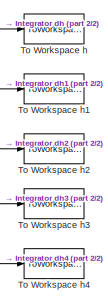
[diagram: root canvas - part 1/2, top right region]
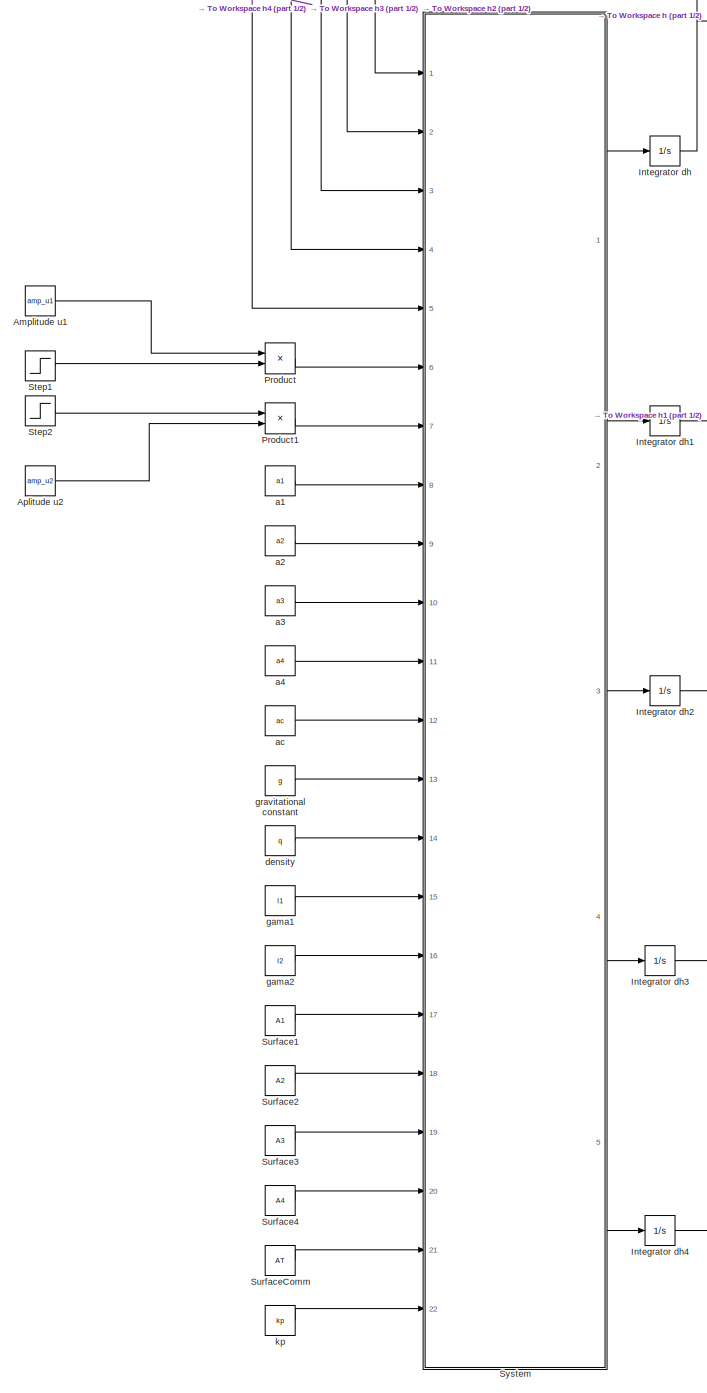
[diagram: root canvas - part 2/2, left side, full height]
MODEL slx_639c44bf7138
KIND model
CONFIG AbsTol = auto
CONFIG EnableMultiTasking = off
CONFIG FixedStep = auto
CONFIG MaxStep = auto
CONFIG MinStep = auto
CONFIG RelTol = 1e-3
CONFIG SampleTimeConstraint = Unconstrained
CONFIG Solver = VariableStepAuto
CONFIG SolverName = VariableStepAuto
CONFIG StartTime = 0.0
CONFIG StopTime = 10.0
BLOCK [Constant]  gama1
  Value = l1
  VectorParams1D = off
BLOCK [Constant] Amplitude u1
  Value = amp_u1
BLOCK [Constant] Aplitude u2
  Value = amp_u2
BLOCK [Integrator] Integrator dh
  InitialCondition = cih
  Ports = [1, 1]
BLOCK [Integrator] Integrator dh1
  InitialCondition = cih1
  Ports = [1, 1]
BLOCK [Integrator] Integrator dh2
  InitialCondition = cih2
  Ports = [1, 1]
BLOCK [Integrator] Integrator dh3
  InitialCondition = cih3
  Ports = [1, 1]
BLOCK [Integrator] Integrator dh4
  InitialCondition = cih4
  Ports = [1, 1]
BLOCK [Product] Product
  InputSameDT = off
  OutDataTypeStr = Inherit: Inherit via internal rule
  Ports = [2, 1]
  RndMeth = Floor
  SaturateOnIntegerOverflow = off
BLOCK [Product] Product1
  InputSameDT = off
  OutDataTypeStr = Inherit: Inherit via internal rule
  Ports = [2, 1]
  RndMeth = Floor
  SaturateOnIntegerOverflow = off
BLOCK [Step] Step1
  After = step1
  SampleTime = 0
BLOCK [Step] Step2
  After = step2
  SampleTime = 0
BLOCK [Constant] Surface1
  Value = A1
  VectorParams1D = off
BLOCK [Constant] Surface2
  Value = A2
  VectorParams1D = off
BLOCK [Constant] Surface3
  Value = A3
  VectorParams1D = off
BLOCK [Constant] Surface4
  Value = A4
  VectorParams1D = off
BLOCK [Constant] SurfaceComm
  Value = AT
  VectorParams1D = off
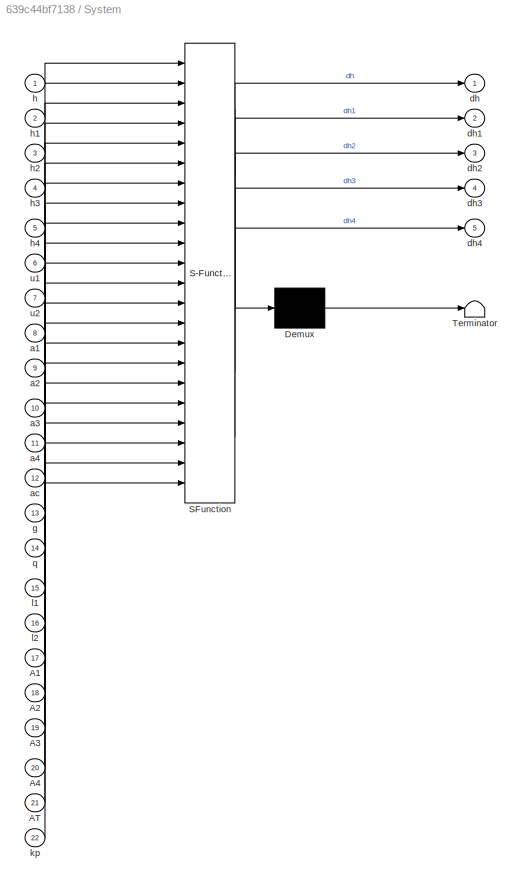
BLOCK [SubSystem] System
  ErrorFcn = Stateflow.Translate.translate
  PermitHierarchicalResolution = ExplicitOnly
  Ports = [22, 5]
  RequestExecContextInheritance = off
  SFBlockType = MATLAB Function
  TreatAsAtomicUnit = on
BLOCK [Demux] System/ Demux 
  Outputs = 1
  Ports = [1, 1]
BLOCK [S-Function] System/ SFunction 
  EnableBusSupport = off
  FunctionName = sf_sfun
  PortCounts = [22 6]
  Ports = [22, 6]
  SFcnIsStateOwnerBlock = off
  SFunctionDeploymentMode = off
  Tag = Stateflow S-Function tema 2
BLOCK [Terminator] System/ Terminator 
BLOCK [Inport] System/A1
  IconDisplay = Port number
  Port = 17
BLOCK [Inport] System/A2
  IconDisplay = Port number
  Port = 18
BLOCK [Inport] System/A3
  IconDisplay = Port number
  Port = 19
BLOCK [Inport] System/A4
  IconDisplay = Port number
  Port = 20
BLOCK [Inport] System/AT
  IconDisplay = Port number
  Port = 21
BLOCK [Inport] System/a1
  IconDisplay = Port number
  Port = 8
BLOCK [Inport] System/a2
  IconDisplay = Port number
  Port = 9
BLOCK [Inport] System/a3
  IconDisplay = Port number
  Port = 10
BLOCK [Inport] System/a4
  IconDisplay = Port number
  Port = 11
BLOCK [Inport] System/ac
  IconDisplay = Port number
  Port = 12
BLOCK [Outport] System/dh
  IconDisplay = Port number
BLOCK [Outport] System/dh1
  IconDisplay = Port number
  Port = 2
BLOCK [Outport] System/dh2
  IconDisplay = Port number
  Port = 3
BLOCK [Outport] System/dh3
  IconDisplay = Port number
  Port = 4
BLOCK [Outport] System/dh4
  IconDisplay = Port number
  Port = 5
BLOCK [Inport] System/g
  IconDisplay = Port number
  Port = 13
BLOCK [Inport] System/h
  IconDisplay = Port number
BLOCK [Inport] System/h1
  IconDisplay = Port number
  Port = 2
BLOCK [Inport] System/h2
  IconDisplay = Port number
  Port = 3
BLOCK [Inport] System/h3
  IconDisplay = Port number
  Port = 4
BLOCK [Inport] System/h4
  IconDisplay = Port number
  Port = 5
BLOCK [Inport] System/kp
  IconDisplay = Port number
  Port = 22
BLOCK [Inport] System/l1
  IconDisplay = Port number
  Port = 15
BLOCK [Inport] System/l2
  IconDisplay = Port number
  Port = 16
BLOCK [Inport] System/q
  IconDisplay = Port number
  Port = 14
BLOCK [Inport] System/u1
  IconDisplay = Port number
  Port = 6
BLOCK [Inport] System/u2
  IconDisplay = Port number
  Port = 7
BLOCK [ToWorkspace] To Workspace h
  FixptAsFi = on
  MaxDataPoints = inf
  Ports = [1]
  SampleTime = -1
  Save2DSignal = 3-D array (concatenate along third dimension)
  SaveFormat = Timeseries
  VariableName = h
BLOCK [ToWorkspace] To Workspace h1
  FixptAsFi = on
  MaxDataPoints = inf
  Ports = [1]
  SampleTime = -1
  Save2DSignal = 3-D array (concatenate along third dimension)
  SaveFormat = Timeseries
  VariableName = h1
BLOCK [ToWorkspace] To Workspace h2
  FixptAsFi = on
  MaxDataPoints = inf
  Ports = [1]
  SampleTime = -1
  Save2DSignal = 3-D array (concatenate along third dimension)
  SaveFormat = Timeseries
  VariableName = h2
BLOCK [ToWorkspace] To Workspace h3
  FixptAsFi = on
  MaxDataPoints = inf
  Ports = [1]
  SampleTime = -1
  Save2DSignal = 3-D array (concatenate along third dimension)
  SaveFormat = Timeseries
  VariableName = h3
BLOCK [ToWorkspace] To Workspace h4
  FixptAsFi = on
  MaxDataPoints = inf
  Ports = [1]
  SampleTime = -1
  Save2DSignal = 3-D array (concatenate along third dimension)
  SaveFormat = Timeseries
  VariableName = h4
BLOCK [Constant] a1
  Value = a1
  VectorParams1D = off
BLOCK [Constant] a2
  Value = a2
  VectorParams1D = off
BLOCK [Constant] a3
  Value = a3
  VectorParams1D = off
BLOCK [Constant] a4
  Value = a4
  VectorParams1D = off
BLOCK [Constant] ac
  Value = ac
  VectorParams1D = off
BLOCK [Constant] density
  Value = q
  VectorParams1D = off
BLOCK [Constant] gama2
  Value = l2
  VectorParams1D = off
BLOCK [Constant] gravitational constant
  Value = g
  VectorParams1D = off
BLOCK [Constant] kp
  Value = kp
  VectorParams1D = off
LINE  gama1:1 -> System:15
LINE Amplitude u1:1 -> Product:1
LINE Aplitude u2:1 -> Product1:2
NET Integrator dh1:1 -> System:2, To Workspace h1:1
NET Integrator dh2:1 -> System:3, To Workspace h2:1
NET Integrator dh3:1 -> System:4, To Workspace h3:1
NET Integrator dh4:1 -> System:5, To Workspace h4:1
NET Integrator dh:1 -> System:1, To Workspace h:1
LINE Product1:1 -> System:7
LINE Product:1 -> System:6
LINE Step1:1 -> Product:2
LINE Step2:1 -> Product1:1
LINE Surface1:1 -> System:17
LINE Surface2:1 -> System:18
LINE Surface3:1 -> System:19
LINE Surface4:1 -> System:20
LINE SurfaceComm:1 -> System:21
LINE System:1 -> Integrator dh:1
LINE System:2 -> Integrator dh1:1
LINE System:3 -> Integrator dh2:1
LINE System:4 -> Integrator dh3:1
LINE System:5 -> Integrator dh4:1
LINE a1:1 -> System:8
LINE a2:1 -> System:9
LINE a3:1 -> System:10
LINE a4:1 -> System:11
LINE ac:1 -> System:12
LINE density:1 -> System:14
LINE gama2:1 -> System:16
LINE gravitational constant:1 -> System:13
LINE kp:1 -> System:22
note: NET lines group one-source signal fan-out (src -> all destinations, sorted); 1:1 wires keep LINE
CHART System states=1 transitions=1
  STATE_LABEL 'eML_blk_kernel()'
  STATE_LABEL 'SCRIPT:\nfunction [dh, dh1, dh2, dh3, dh4] = fcn(h, h1, h2, h3, h4, u1, u2, a1, a2, a3, a4, ac, g, q, l1, l2, A1, A2, A3, A4, AT, kp)\n    dh1 = 1/A1*(-a1*sqrt(2*g*h1) - ac*sign(q*g*h1 - q*g*h2)*sqrt(2*g*abs(h1 - h2)) + a3*sqrt(2*g*h3) + l1*kp*u1);\n    dh2 = 1/A2*(-a2*sqrt(2*g*h2) - ac*sign(q*g*h1 - q*g*h2)*sqrt(2*g*abs(h1 - h2)) + a4*sqrt(2*g*h4) + l2*kp*u2);\n    dh3 = 1/A3*(-a3*sqrt(2*g*h3) + (1 -...<+135ch>'
